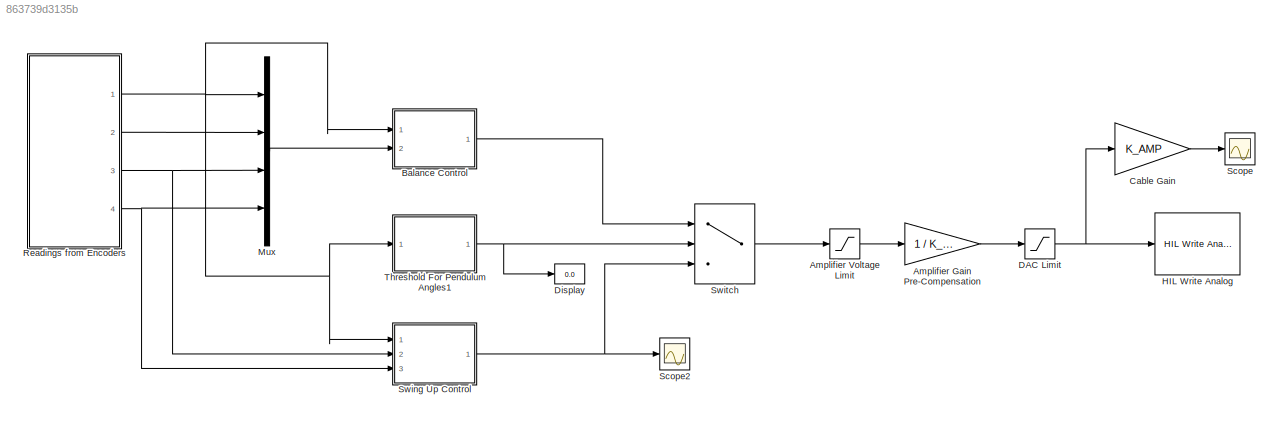
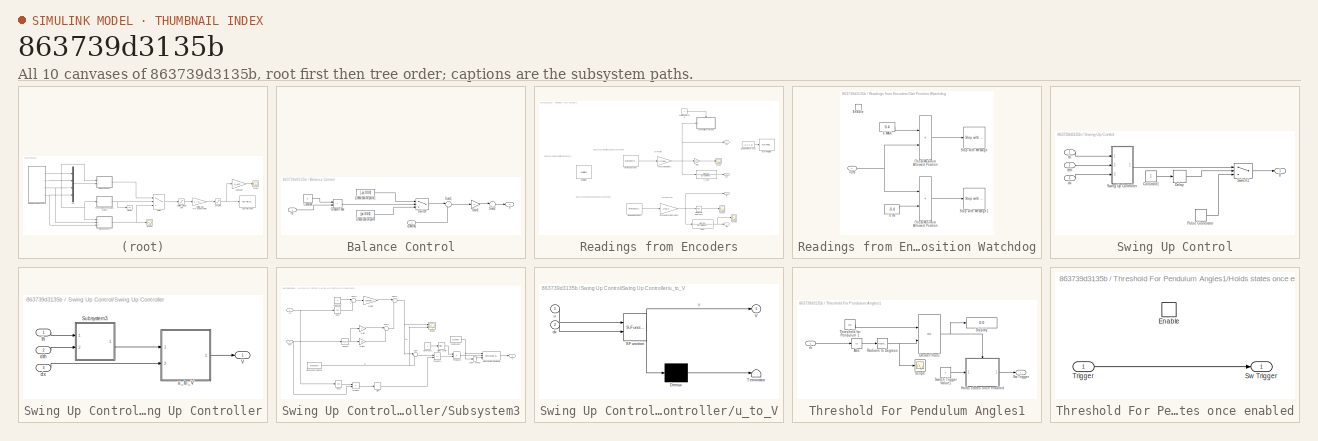
[diagram: thumbnail index - all 10 canvases of the model, root first then tree order]
MODEL slx_863739d3135b
KIND model
CONFIG AbsTol = auto
CONFIG EnableMultiTasking = on
CONFIG FixedStep = 0.002
CONFIG MaxStep = auto
CONFIG MinStep = auto
CONFIG RelTol = 1e-3
CONFIG SampleTimeConstraint = Unconstrained
CONFIG SolverName = ode1
CONFIG StartTime = 0.0
CONFIG StopTime = 60
BLOCK [Gain] Amplifier Gain Pre-Compensation
  Gain = 1 / K_AMP
  OutDataTypeStr = Inherit: Same as input
  ParamDataTypeStr = Inherit: Same as input
  SaturateOnIntegerOverflow = on
BLOCK [Saturate] Amplifier Voltage Limit
  LowerLimit = -24
  UpperLimit = 24
BLOCK [SubSystem] Balance Control
  Ports = [2, 1]
  RequestExecContextInheritance = off
BLOCK [Constant] Balance Control/Constant
  Value = 0
BLOCK [Gain] Balance Control/Gain1
  Gain = K
  Multiplication = Matrix(K*u)
BLOCK [RelationalOperator] Balance Control/GreaterThan
  InputSameDT = off
  Operator = >
  OutDataTypeStr = boolean
  Ports = [2, 1]
  RndMeth = Simplest
BLOCK [Constant] Balance Control/Linearisation point
  Value = [pi;0;0;0]
BLOCK [Constant] Balance Control/Linearisation point1
  Value = [-pi;0;0;0]
BLOCK [Sum] Balance Control/Sum1
  Inputs = |-+
  Ports = [2, 1]
BLOCK [Sum] Balance Control/Sum2
  Inputs = |-+
  Ports = [2, 1]
BLOCK [Switch] Balance Control/Switch
  Criteria = u2 > Threshold
  InputSameDT = off
  SaturateOnIntegerOverflow = off
BLOCK [Outport] Balance Control/V
BLOCK [Inport] Balance Control/q and dq
  Port = 2
BLOCK [Inport] Balance Control/th
BLOCK [Gain] Cable Gain
  Gain = K_AMP
  OutDataTypeStr = Inherit: Same as input
  ParamDataTypeStr = Inherit: Same as input
  SaturateOnIntegerOverflow = on
BLOCK [Saturate] DAC Limit
  LowerLimit = -10
  UpperLimit = 10
BLOCK [Display] Display
  Decimation = 1
  Ports = [1]
BLOCK [Reference] HIL Write Analog  REF=quarc_library/Data Acquisition/Generic/Immediate I//O/HIL Write Analog
  AttributesFormatString = (%<object_name>)
  Ports = [1]
  SourceBlock = quarc_library/Data Acquisition/Generic/Immediate I//O/HIL Write Analog
  SourceProductName = QUARC Targets
  SourceType = HIL Write Analog
  UserDataPersistent = on
BLOCK [Mux] Mux
  DisplayOption = bar
  Ports = [4, 1]
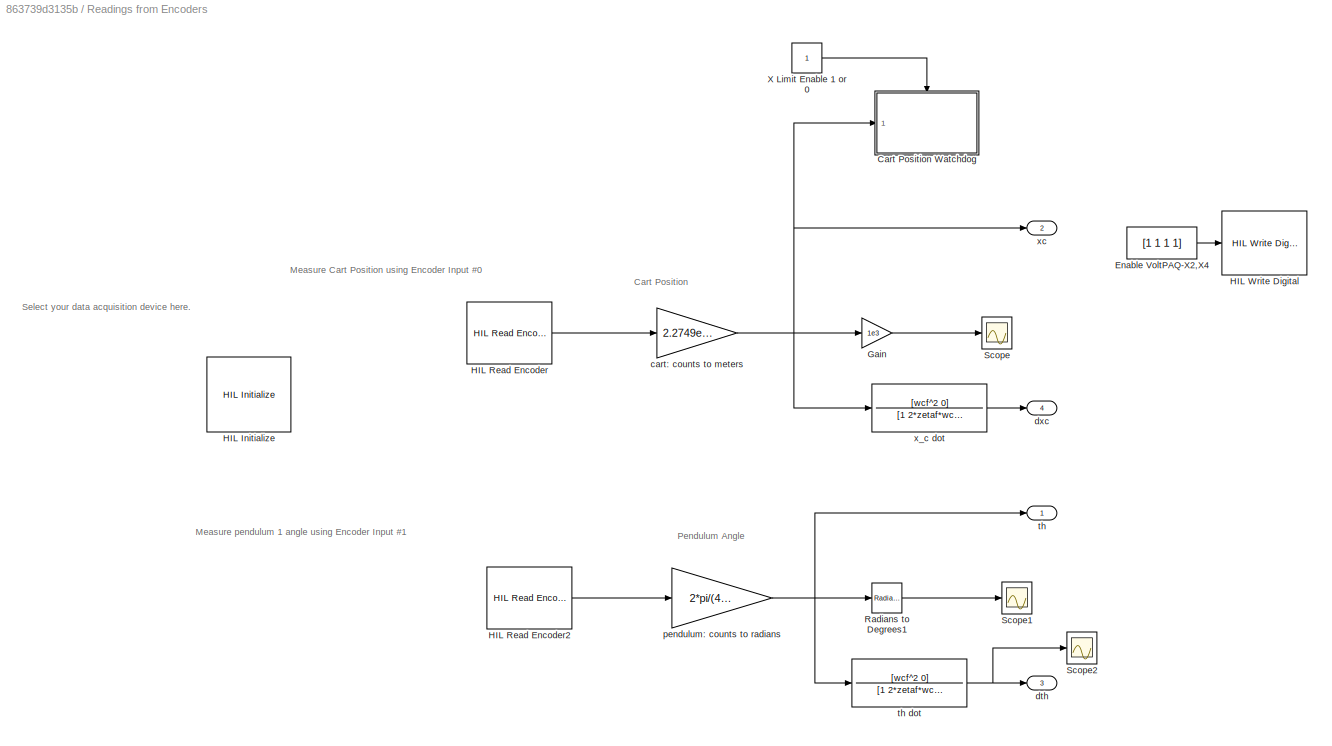
BLOCK [SubSystem] Readings from Encoders
  Ports = [0, 4]
  RequestExecContextInheritance = off
BLOCK [SubSystem] Readings from Encoders/Cart Position Watchdog
  Ports = [1, 0, 1]
  RequestExecContextInheritance = off
  TreatAsAtomicUnit = on
BLOCK [RelationalOperator] Readings from Encoders/Cart Position Watchdog/Check Maximum Allowed Position
  Operator = <
  Ports = [2, 1]
BLOCK [RelationalOperator] Readings from Encoders/Cart Position Watchdog/Check Minimum Allowed Position
  Operator = <
  Ports = [2, 1]
BLOCK [EnablePort] Readings from Encoders/Cart Position Watchdog/Enable
  Ports = []
BLOCK [Reference] Readings from Encoders/Cart Position Watchdog/Stop with Message  REF=quarc_library/Sinks/Error Handling/Stop with Message
  AttributesFormatString = "%<message>"
  Ports = [1]
  SourceBlock = quarc_library/Sinks/Error Handling/Stop with Message
  SourceProductName = QUARC Targets
  SourceType = Stop with Message
BLOCK [Reference] Readings from Encoders/Cart Position Watchdog/Stop with Message1  REF=quarc_library/Sinks/Error Handling/Stop with Message
  AttributesFormatString = "%<message>"
  Ports = [1]
  SourceBlock = quarc_library/Sinks/Error Handling/Stop with Message
  SourceProductName = QUARC Targets
  SourceType = Stop with Message
BLOCK [Constant] Readings from Encoders/Cart Position Watchdog/X IN
  Value = -0.4
BLOCK [Constant] Readings from Encoders/Cart Position Watchdog/X MAX
  Value = 0.4
BLOCK [Inport] Readings from Encoders/Cart Position Watchdog/x (m)
BLOCK [Constant] Readings from Encoders/Enable VoltPAQ-X2,X4
  Value = [1 1 1 1]
BLOCK [Gain] Readings from Encoders/Gain
  Gain = 1e3
BLOCK [Reference] Readings from Encoders/HIL Initialize  REF=quarc_library/Data Acquisition/Generic/Configuration/HIL Initialize
  AttributesFormatString = %<object_name> (%<board_type>-%<board_number>)
  Ports = []
  SourceBlock = quarc_library/Data Acquisition/Generic/Configuration/HIL Initialize
  SourceProductName = QUARC Targets
  SourceType = HIL Initialize
  UserDataPersistent = on
BLOCK [Reference] Readings from Encoders/HIL Read Encoder  REF=quarc_library/Data Acquisition/Generic/Immediate I//O/HIL Read Encoder
  AttributesFormatString = (%<object_name>)
  Ports = [0, 1]
  SourceBlock = quarc_library/Data Acquisition/Generic/Immediate I//O/HIL Read Encoder
  SourceProductName = QUARC Targets
  SourceType = HIL Read Encoder
  UserDataPersistent = on
BLOCK [Reference] Readings from Encoders/HIL Read Encoder2  REF=quarc_library/Data Acquisition/Generic/Immediate I//O/HIL Read Encoder
  AttributesFormatString = (%<object_name>)
  Ports = [0, 1]
  SourceBlock = quarc_library/Data Acquisition/Generic/Immediate I//O/HIL Read Encoder
  SourceProductName = QUARC Targets
  SourceType = HIL Read Encoder
  UserDataPersistent = on
BLOCK [Reference] Readings from Encoders/HIL Write Digital  REF=quarc_library/Data Acquisition/Generic/Immediate I//O/HIL Write Digital
  AttributesFormatString = (%<object_name>)
  Ports = [1]
  SourceBlock = quarc_library/Data Acquisition/Generic/Immediate I//O/HIL Write Digital
  SourceProductName = QUARC Targets
  SourceType = HIL Write Digital
  UserDataPersistent = on
BLOCK [Reference] Readings from Encoders/Radians to Degrees1  REF=simulink_extras/Transformations/Radians
to Degrees
  Ports = [1, 1]
  SourceBlock = simulink_extras/Transformations/Radians\nto Degrees
  SourceProductBaseCode = SL
  SourceType = RadiansToDegrees
BLOCK [Scope] Readings from Encoders/Scope
  Floating = off
  NumInputPorts = 1
  Ports = [1]
  ScopeSpecificationString = Simulink.scopes.TimeScopeBlockCfg('CurrentConfiguration', extmgr.ConfigurationSet(extmgr.Configuration('Core','General UI',true),extmgr.Configuration('Core','Source UI',true),extmgr.Configuration('Sources','WiredSimulink',true,'DataLoggingVariableName','Xc','DataLogging',true,'DataLoggingSaveFormat','Array','SampleTime','0.002'),extmgr.Configuration('Visuals','Time Domain',true,'SerializedDisplays...<+1493ch>
BLOCK [Scope] Readings from Encoders/Scope1
  Floating = off
  NumInputPorts = 1
  Ports = [1]
  ScopeSpecificationString = Simulink.scopes.TimeScopeBlockCfg('CurrentConfiguration', extmgr.ConfigurationSet(extmgr.Configuration('Core','General UI',true),extmgr.Configuration('Core','Source UI',true),extmgr.Configuration('Sources','WiredSimulink',true,'DataLoggingVariableName','th1','DataLogging',true,'DataLoggingSaveFormat','Array','SampleTime','0.002'),extmgr.Configuration('Visuals','Time Domain',true,'SerializedDisplay...<+1528ch>
BLOCK [Scope] Readings from Encoders/Scope2
  Floating = off
  NumInputPorts = 1
  Ports = [1]
  ScopeSpecificationString = Simulink.scopes.TimeScopeBlockCfg('CurrentConfiguration', extmgr.ConfigurationSet(extmgr.Configuration('Core','General UI',true),extmgr.Configuration('Core','Source UI',true),extmgr.Configuration('Sources','WiredSimulink',true,'DataLoggingVariableName','ScopeData1'),extmgr.Configuration('Visuals','Time Domain',true),extmgr.Configuration('Tools','Plot Navigation',true),extmgr.Configuration('Tools',...<+40ch>
BLOCK [Constant] Readings from Encoders/X Limit Enable 1 or 0
BLOCK [Gain] Readings from Encoders/cart: counts to meters
  Gain = 2.2749e-05
  OutDataTypeStr = Inherit: Same as input
  ParamDataTypeStr = Inherit: Same as input
  SaturateOnIntegerOverflow = on
BLOCK [Outport] Readings from Encoders/dth
  Port = 3
BLOCK [Outport] Readings from Encoders/dxc
  Port = 4
BLOCK [Gain] Readings from Encoders/pendulum: counts to radians
  Gain = 2*pi/(4*1024)
  OutDataTypeStr = Inherit: Same as input
  ParamDataTypeStr = Inherit: Same as input
  SaturateOnIntegerOverflow = on
BLOCK [Outport] Readings from Encoders/th
BLOCK [TransferFcn] Readings from Encoders/th dot
  Denominator = [1 2*zetaf*wcf wcf^2]
  Numerator = [wcf^2 0]
BLOCK [TransferFcn] Readings from Encoders/x_c dot
  Denominator = [1 2*zetaf*wcf wcf^2]
  Numerator = [wcf^2 0]
BLOCK [Outport] Readings from Encoders/xc
  Port = 2
BLOCK [Scope] Scope
  Floating = off
  NumInputPorts = 1
  Ports = [1]
  ScopeSpecificationString = Simulink.scopes.TimeScopeBlockCfg('CurrentConfiguration', extmgr.ConfigurationSet(extmgr.Configuration('Core','General UI',true),extmgr.Configuration('Core','Source UI',true),extmgr.Configuration('Sources','WiredSimulink',true,'DataLoggingVariableName','Voltage','DataLogging',true,'DataLoggingSaveFormat','Array'),extmgr.Configuration('Visuals','Time Domain',true,'SerializedDisplays',{struct('MinYL...<+1440ch>
BLOCK [Scope] Scope2
  Floating = off
  NumInputPorts = 1
  Ports = [1]
  ScopeSpecificationString = Simulink.scopes.TimeScopeBlockCfg('CurrentConfiguration', extmgr.ConfigurationSet(extmgr.Configuration('Core','General UI',true),extmgr.Configuration('Core','Source UI',true),extmgr.Configuration('Sources','WiredSimulink',true,'DataLoggingVariableName','ScopeData2'),extmgr.Configuration('Visuals','Time Domain',true,'SerializedDisplays',{struct('MinYLimReal','-7.90031','MaxYLimReal','7.57033','YLab...<+1400ch>
BLOCK [SubSystem] Swing Up Control
  Ports = [3, 1]
  RequestExecContextInheritance = off
BLOCK [Constant] Swing Up Control/Constant1
BLOCK [Delay] Swing Up Control/Delay
  DelayLength = 300
  InputPortMap = u0
  Ports = [1, 1]
  SampleTime = 0.002
BLOCK [DiscretePulseGenerator] Swing Up Control/Pulse Generator
  Amplitude = 6
  Period = 100
  Ports = [0, 1]
  PulseType = Time based
  PulseWidth = 0.1
BLOCK [SubSystem] Swing Up Control/Swing Up Controller
  Ports = [3, 1]
  RequestExecContextInheritance = off
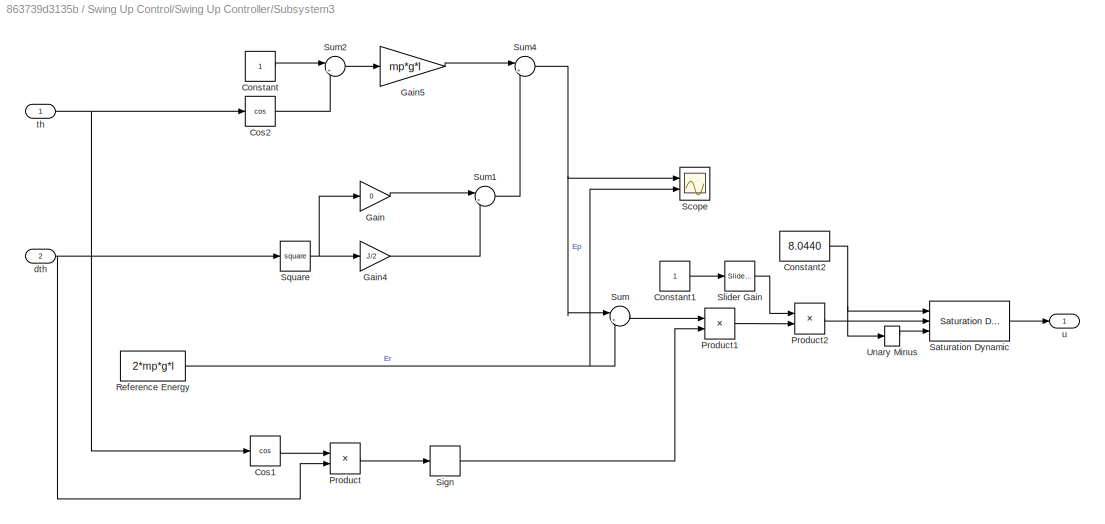
BLOCK [SubSystem] Swing Up Control/Swing Up Controller/Subsystem3
  Ports = [2, 1]
  RequestExecContextInheritance = off
BLOCK [Constant] Swing Up Control/Swing Up Controller/Subsystem3/Constant
BLOCK [Constant] Swing Up Control/Swing Up Controller/Subsystem3/Constant1
BLOCK [Constant] Swing Up Control/Swing Up Controller/Subsystem3/Constant2
  Value = 8.0440
BLOCK [Trigonometry] Swing Up Control/Swing Up Controller/Subsystem3/Cos1
  Operator = cos
  Ports = [1, 1]
BLOCK [Trigonometry] Swing Up Control/Swing Up Controller/Subsystem3/Cos2
  Operator = cos
  Ports = [1, 1]
BLOCK [Gain] Swing Up Control/Swing Up Controller/Subsystem3/Gain
  Gain = 0
BLOCK [Gain] Swing Up Control/Swing Up Controller/Subsystem3/Gain4
  Gain = J/2
BLOCK [Gain] Swing Up Control/Swing Up Controller/Subsystem3/Gain5
  Gain = mp*g*l
BLOCK [Product] Swing Up Control/Swing Up Controller/Subsystem3/Product
  Ports = [2, 1]
BLOCK [Product] Swing Up Control/Swing Up Controller/Subsystem3/Product1
  Ports = [2, 1]
BLOCK [Product] Swing Up Control/Swing Up Controller/Subsystem3/Product2
  Ports = [2, 1]
BLOCK [Constant] Swing Up Control/Swing Up Controller/Subsystem3/Reference Energy
  Value = 2*mp*g*l
BLOCK [Reference] Swing Up Control/Swing Up Controller/Subsystem3/Saturation Dynamic  REF=simulink/Discontinuities/Saturation
Dynamic
  Ports = [3, 1]
  SourceBlock = simulink/Discontinuities/Saturation\nDynamic
  SourceProductBaseCode = SL
  SourceType = Saturation Dynamic
BLOCK [Scope] Swing Up Control/Swing Up Controller/Subsystem3/Scope
  Floating = off
  NumInputPorts = 2
  Ports = [2]
  ScopeSpecificationString = Simulink.scopes.TimeScopeBlockCfg('CurrentConfiguration', extmgr.ConfigurationSet(extmgr.Configuration('Core','General UI',true),extmgr.Configuration('Core','Source UI',true),extmgr.Configuration('Sources','WiredSimulink',true,'DataLoggingVariableName','ScopeData8'),extmgr.Configuration('Visuals','Time Domain',true,'SerializedDisplays',{struct('MinYLimReal','-0.18654','MaxYLimReal','1.67885','YLab...<+1366ch>
BLOCK [Signum] Swing Up Control/Swing Up Controller/Subsystem3/Sign
BLOCK [Reference] Swing Up Control/Swing Up Controller/Subsystem3/Slider Gain  REF=simulink/Math
Operations/Slider
Gain
  Ports = [1, 1]
  SourceBlock = simulink/Math\nOperations/Slider\nGain
  SourceProductBaseCode = SL
  SourceType = Slider Gain
BLOCK [Math] Swing Up Control/Swing Up Controller/Subsystem3/Square
  Operator = square
  Ports = [1, 1]
BLOCK [Sum] Swing Up Control/Swing Up Controller/Subsystem3/Sum
  Inputs = |+-
  Ports = [2, 1]
BLOCK [Sum] Swing Up Control/Swing Up Controller/Subsystem3/Sum1
  Inputs = |++
  Ports = [2, 1]
BLOCK [Sum] Swing Up Control/Swing Up Controller/Subsystem3/Sum2
  Inputs = |+-
  Ports = [2, 1]
BLOCK [Sum] Swing Up Control/Swing Up Controller/Subsystem3/Sum4
  Inputs = |++
  Ports = [2, 1]
BLOCK [UnaryMinus] Swing Up Control/Swing Up Controller/Subsystem3/Unary Minus
BLOCK [Inport] Swing Up Control/Swing Up Controller/Subsystem3/dth
  Port = 2
BLOCK [Inport] Swing Up Control/Swing Up Controller/Subsystem3/th
BLOCK [Outport] Swing Up Control/Swing Up Controller/Subsystem3/u
BLOCK [Outport] Swing Up Control/Swing Up Controller/V
BLOCK [Inport] Swing Up Control/Swing Up Controller/dth
  Port = 2
BLOCK [Inport] Swing Up Control/Swing Up Controller/dx
  Port = 3
BLOCK [Inport] Swing Up Control/Swing Up Controller/th
BLOCK [SubSystem] Swing Up Control/Swing Up Controller/u_to_V
  ErrorFcn = Stateflow.Translate.translate
  PermitHierarchicalResolution = ExplicitOnly
  Ports = [2, 1]
  RequestExecContextInheritance = off
  SFBlockType = MATLAB Function
  TreatAsAtomicUnit = on
BLOCK [Demux] Swing Up Control/Swing Up Controller/u_to_V/ Demux 
  Outputs = 1
  Ports = [1, 1]
BLOCK [S-Function] Swing Up Control/Swing Up Controller/u_to_V/ SFunction 
  EnableBusSupport = on
  FunctionName = sf_sfun
  PortCounts = [2 2]
  Ports = [2, 2]
  SFcnIsStateOwnerBlock = off
  SFunctionDeploymentMode = off
  Tag = Stateflow S-Function 6
BLOCK [Terminator] Swing Up Control/Swing Up Controller/u_to_V/ Terminator 
BLOCK [Outport] Swing Up Control/Swing Up Controller/u_to_V/V
BLOCK [Inport] Swing Up Control/Swing Up Controller/u_to_V/dx
  Port = 2
BLOCK [Inport] Swing Up Control/Swing Up Controller/u_to_V/u
BLOCK [Switch] Swing Up Control/Switch1
  Criteria = u2 > Threshold
  InputSameDT = off
  SaturateOnIntegerOverflow = off
BLOCK [Outport] Swing Up Control/V
BLOCK [Inport] Swing Up Control/dth
  Port = 2
BLOCK [Inport] Swing Up Control/dx
  Port = 3
BLOCK [Inport] Swing Up Control/th
BLOCK [Switch] Switch
  Criteria = u2 > Threshold
  InputSameDT = off
  SaturateOnIntegerOverflow = off
BLOCK [SubSystem] Threshold For Pendulum Angles1
  Ports = [1, 1]
  RequestExecContextInheritance = off
BLOCK [Abs] Threshold For Pendulum Angles1/Abs
  SaturateOnIntegerOverflow = off
BLOCK [Display] Threshold For Pendulum Angles1/Display
  Decimation = 1
  Ports = [1]
BLOCK [RelationalOperator] Threshold For Pendulum Angles1/GreaterThan1
  InputSameDT = off
  Operator = <=
  OutDataTypeStr = boolean
  Ports = [2, 1]
  RndMeth = Simplest
BLOCK [SubSystem] Threshold For Pendulum Angles1/Holds states once enabled
  Ports = [1, 1, 1]
  RequestExecContextInheritance = off
  TreatAsAtomicUnit = on
BLOCK [EnablePort] Threshold For Pendulum Angles1/Holds states once enabled/Enable
  Ports = []
BLOCK [Outport] Threshold For Pendulum Angles1/Holds states once enabled/Sw Trigger
  InitialOutput = [0]
  OutDataTypeStr = double
BLOCK [Inport] Threshold For Pendulum Angles1/Holds states once enabled/Trigger
  OutDataTypeStr = double
BLOCK [Reference] Threshold For Pendulum Angles1/Radians to Degrees  REF=simulink_extras/Transformations/Radians
to Degrees
  Ports = [1, 1]
  SourceBlock = simulink_extras/Transformations/Radians\nto Degrees
  SourceProductBaseCode = SL
  SourceType = RadiansToDegrees
BLOCK [Scope] Threshold For Pendulum Angles1/Scope
  Floating = off
  NumInputPorts = 1
  Ports = [1]
  ScopeSpecificationString = Simulink.scopes.TimeScopeBlockCfg('CurrentConfiguration', extmgr.ConfigurationSet(extmgr.Configuration('Core','General UI',true),extmgr.Configuration('Core','Source UI',true),extmgr.Configuration('Sources','WiredSimulink',true,'DataLoggingVariableName','abs_th','DataLogging',true,'DataLoggingSaveFormat','Array'),extmgr.Configuration('Visuals','Time Domain',true,'SerializedDisplays',{struct('MinYLi...<+1505ch>
BLOCK [Outport] Threshold For Pendulum Angles1/Sw Trigger
BLOCK [Constant] Threshold For Pendulum Angles1/Switch Trigger Value1
BLOCK [Constant] Threshold For Pendulum Angles1/Threshold for Pendulum 1
  Value = 175
BLOCK [Inport] Threshold For Pendulum Angles1/th
ANNOTATION Readings from Encoders: Cart Position
ANNOTATION Readings from Encoders: Measure Cart Position using Encoder Input #0
ANNOTATION Readings from Encoders: Measure pendulum 1 angle using Encoder Input #1
ANNOTATION Readings from Encoders: Pendulum Angle
ANNOTATION Readings from Encoders: Select your data acquisition device here.
LINE Amplifier Gain Pre-Compensation:1 -> DAC Limit:1
LINE Amplifier Voltage Limit:1 -> Amplifier Gain Pre-Compensation:1
LINE Balance Control/Constant:1 -> Balance Control/GreaterThan:1
LINE Balance Control/Gain1:1 -> Balance Control/Sum2:1
LINE Balance Control/GreaterThan:1 -> Balance Control/Switch:2
LINE Balance Control/Linearisation point1:1 -> Balance Control/Switch:1
LINE Balance Control/Linearisation point:1 -> Balance Control/Switch:3
LINE Balance Control/Sum1:1 -> Balance Control/Gain1:1
LINE Balance Control/Sum2:1 -> Balance Control/V:1
LINE Balance Control/Switch:1 -> Balance Control/Sum1:1
LINE Balance Control/q and dq:1 -> Balance Control/Sum1:2
LINE Balance Control/th:1 -> Balance Control/GreaterThan:2
LINE Balance Control:1 -> Switch:1
LINE Cable Gain:1 -> Scope:1
NET DAC Limit:1 -> Cable Gain:1, HIL Write Analog:1
LINE Mux:1 -> Balance Control:2
LINE Readings from Encoders/Cart Position Watchdog/Check Maximum Allowed Position:1 -> Readings from Encoders/Cart Position Watchdog/Stop with Message:1
LINE Readings from Encoders/Cart Position Watchdog/Check Minimum Allowed Position:1 -> Readings from Encoders/Cart Position Watchdog/Stop with Message1:1
LINE Readings from Encoders/Cart Position Watchdog/X IN:1 -> Readings from Encoders/Cart Position Watchdog/Check Minimum Allowed Position:2
LINE Readings from Encoders/Cart Position Watchdog/X MAX:1 -> Readings from Encoders/Cart Position Watchdog/Check Maximum Allowed Position:1
NET Readings from Encoders/Cart Position Watchdog/x (m):1 -> Readings from Encoders/Cart Position Watchdog/Check Maximum Allowed Position:2, Readings from Encoders/Cart Position Watchdog/Check Minimum Allowed Position:1
LINE Readings from Encoders/Enable VoltPAQ-X2,X4:1 -> Readings from Encoders/HIL Write Digital:1
LINE Readings from Encoders/Gain:1 -> Readings from Encoders/Scope:1
LINE Readings from Encoders/HIL Read Encoder2:1 -> Readings from Encoders/pendulum: counts to radians:1
LINE Readings from Encoders/HIL Read Encoder:1 -> Readings from Encoders/cart: counts to meters:1
LINE Readings from Encoders/Radians to Degrees1:1 -> Readings from Encoders/Scope1:1
LINE Readings from Encoders/X Limit Enable 1 or 0:1 -> Readings from Encoders/Cart Position Watchdog:enable
NET Readings from Encoders/cart: counts to meters:1 -> Readings from Encoders/Cart Position Watchdog:1, Readings from Encoders/Gain:1, Readings from Encoders/x_c dot:1, Readings from Encoders/xc:1
NET Readings from Encoders/pendulum: counts to radians:1 -> Readings from Encoders/Radians to Degrees1:1, Readings from Encoders/th dot:1, Readings from Encoders/th:1
NET Readings from Encoders/th dot:1 -> Readings from Encoders/Scope2:1, Readings from Encoders/dth:1
LINE Readings from Encoders/x_c dot:1 -> Readings from Encoders/dxc:1
NET Readings from Encoders:1 -> Balance Control:1, Mux:1, Swing Up Control:1, Threshold For Pendulum Angles1:1
LINE Readings from Encoders:2 -> Mux:2
NET Readings from Encoders:3 -> Mux:3, Swing Up Control:2
NET Readings from Encoders:4 -> Mux:4, Swing Up Control:3
LINE Swing Up Control/Constant1:1 -> Swing Up Control/Delay:1
LINE Swing Up Control/Delay:1 -> Swing Up Control/Switch1:2
LINE Swing Up Control/Pulse Generator:1 -> Swing Up Control/Switch1:3
LINE Swing Up Control/Swing Up Controller/Subsystem3/Constant1:1 -> Swing Up Control/Swing Up Controller/Subsystem3/Slider Gain:1
NET Swing Up Control/Swing Up Controller/Subsystem3/Constant2:1 -> Swing Up Control/Swing Up Controller/Subsystem3/Saturation Dynamic:1, Swing Up Control/Swing Up Controller/Subsystem3/Unary Minus:1
LINE Swing Up Control/Swing Up Controller/Subsystem3/Constant:1 -> Swing Up Control/Swing Up Controller/Subsystem3/Sum2:1
LINE Swing Up Control/Swing Up Controller/Subsystem3/Cos1:1 -> Swing Up Control/Swing Up Controller/Subsystem3/Product:1
LINE Swing Up Control/Swing Up Controller/Subsystem3/Cos2:1 -> Swing Up Control/Swing Up Controller/Subsystem3/Sum2:2
LINE Swing Up Control/Swing Up Controller/Subsystem3/Gain4:1 -> Swing Up Control/Swing Up Controller/Subsystem3/Sum1:2
LINE Swing Up Control/Swing Up Controller/Subsystem3/Gain5:1 -> Swing Up Control/Swing Up Controller/Subsystem3/Sum4:1
LINE Swing Up Control/Swing Up Controller/Subsystem3/Gain:1 -> Swing Up Control/Swing Up Controller/Subsystem3/Sum1:1
LINE Swing Up Control/Swing Up Controller/Subsystem3/Product1:1 -> Swing Up Control/Swing Up Controller/Subsystem3/Product2:2
LINE Swing Up Control/Swing Up Controller/Subsystem3/Product2:1 -> Swing Up Control/Swing Up Controller/Subsystem3/Saturation Dynamic:2
LINE Swing Up Control/Swing Up Controller/Subsystem3/Product:1 -> Swing Up Control/Swing Up Controller/Subsystem3/Sign:1
NET Swing Up Control/Swing Up Controller/Subsystem3/Reference Energy:1 -> Swing Up Control/Swing Up Controller/Subsystem3/Scope:2, Swing Up Control/Swing Up Controller/Subsystem3/Sum:2
LINE Swing Up Control/Swing Up Controller/Subsystem3/Saturation Dynamic:1 -> Swing Up Control/Swing Up Controller/Subsystem3/u:1
LINE Swing Up Control/Swing Up Controller/Subsystem3/Sign:1 -> Swing Up Control/Swing Up Controller/Subsystem3/Product1:2
LINE Swing Up Control/Swing Up Controller/Subsystem3/Slider Gain:1 -> Swing Up Control/Swing Up Controller/Subsystem3/Product2:1
NET Swing Up Control/Swing Up Controller/Subsystem3/Square:1 -> Swing Up Control/Swing Up Controller/Subsystem3/Gain4:1, Swing Up Control/Swing Up Controller/Subsystem3/Gain:1
LINE Swing Up Control/Swing Up Controller/Subsystem3/Sum1:1 -> Swing Up Control/Swing Up Controller/Subsystem3/Sum4:2
LINE Swing Up Control/Swing Up Controller/Subsystem3/Sum2:1 -> Swing Up Control/Swing Up Controller/Subsystem3/Gain5:1
NET Swing Up Control/Swing Up Controller/Subsystem3/Sum4:1 -> Swing Up Control/Swing Up Controller/Subsystem3/Scope:1, Swing Up Control/Swing Up Controller/Subsystem3/Sum:1
LINE Swing Up Control/Swing Up Controller/Subsystem3/Sum:1 -> Swing Up Control/Swing Up Controller/Subsystem3/Product1:1
LINE Swing Up Control/Swing Up Controller/Subsystem3/Unary Minus:1 -> Swing Up Control/Swing Up Controller/Subsystem3/Saturation Dynamic:3
NET Swing Up Control/Swing Up Controller/Subsystem3/dth:1 -> Swing Up Control/Swing Up Controller/Subsystem3/Product:2, Swing Up Control/Swing Up Controller/Subsystem3/Square:1
NET Swing Up Control/Swing Up Controller/Subsystem3/th:1 -> Swing Up Control/Swing Up Controller/Subsystem3/Cos1:1, Swing Up Control/Swing Up Controller/Subsystem3/Cos2:1
LINE Swing Up Control/Swing Up Controller/Subsystem3:1 -> Swing Up Control/Swing Up Controller/u_to_V:1
LINE Swing Up Control/Swing Up Controller/dth:1 -> Swing Up Control/Swing Up Controller/Subsystem3:2
LINE Swing Up Control/Swing Up Controller/dx:1 -> Swing Up Control/Swing Up Controller/u_to_V:2
LINE Swing Up Control/Swing Up Controller/th:1 -> Swing Up Control/Swing Up Controller/Subsystem3:1
LINE Swing Up Control/Swing Up Controller/u_to_V:1 -> Swing Up Control/Swing Up Controller/V:1
LINE Swing Up Control/Swing Up Controller:1 -> Swing Up Control/Switch1:1
LINE Swing Up Control/Switch1:1 -> Swing Up Control/V:1
LINE Swing Up Control/dth:1 -> Swing Up Control/Swing Up Controller:2
LINE Swing Up Control/dx:1 -> Swing Up Control/Swing Up Controller:3
LINE Swing Up Control/th:1 -> Swing Up Control/Swing Up Controller:1
NET Swing Up Control:1 -> Scope2:1, Switch:3
LINE Switch:1 -> Amplifier Voltage Limit:1
LINE Threshold For Pendulum Angles1/Abs:1 -> Threshold For Pendulum Angles1/Radians to Degrees:1
NET Threshold For Pendulum Angles1/GreaterThan1:1 -> Threshold For Pendulum Angles1/Display:1, Threshold For Pendulum Angles1/Holds states once enabled:enable
LINE Threshold For Pendulum Angles1/Holds states once enabled/Trigger:1 -> Threshold For Pendulum Angles1/Holds states once enabled/Sw Trigger:1
LINE Threshold For Pendulum Angles1/Holds states once enabled:1 -> Threshold For Pendulum Angles1/Sw Trigger:1
NET Threshold For Pendulum Angles1/Radians to Degrees:1 -> Threshold For Pendulum Angles1/GreaterThan1:2, Threshold For Pendulum Angles1/Scope:1
LINE Threshold For Pendulum Angles1/Switch Trigger Value1:1 -> Threshold For Pendulum Angles1/Holds states once enabled:1
LINE Threshold For Pendulum Angles1/Threshold for Pendulum 1:1 -> Threshold For Pendulum Angles1/GreaterThan1:1
LINE Threshold For Pendulum Angles1/th:1 -> Threshold For Pendulum Angles1/Abs:1
NET Threshold For Pendulum Angles1:1 -> Display:1, Switch:2
note: NET lines group one-source signal fan-out (src -> all destinations, sorted); 1:1 wires keep LINE
CHART Swing Up Control/Swing Up Controller/u_to_V states=1 transitions=1
  STATE_LABEL 'eML_blk_kernel()'
  STATE_LABEL 'SCRIPT:\nfunction V = u_to_V(u,dx)\n%#codegen\n\n%    This function was generated by the Symbolic Math Toolbox version 8.7.\n%    26-Oct-2022 11:43:40\n\nmc = 0.57;\n\nR_m = 2.6; \nk_t = 0.00767;\nn_m = 1;\nk_m = 0.00767;\nK_g = 3.71;\nn_g = 1;\nr_mp = 6.35*10^(-3);\n\nV = (K_g.*dx.*k_m)./r_mp+(R_m.*mc.*r_mp.*u)./(K_g.*k_t.*n_g.*n_m);\n'
CHART  states=0 transitions=0
